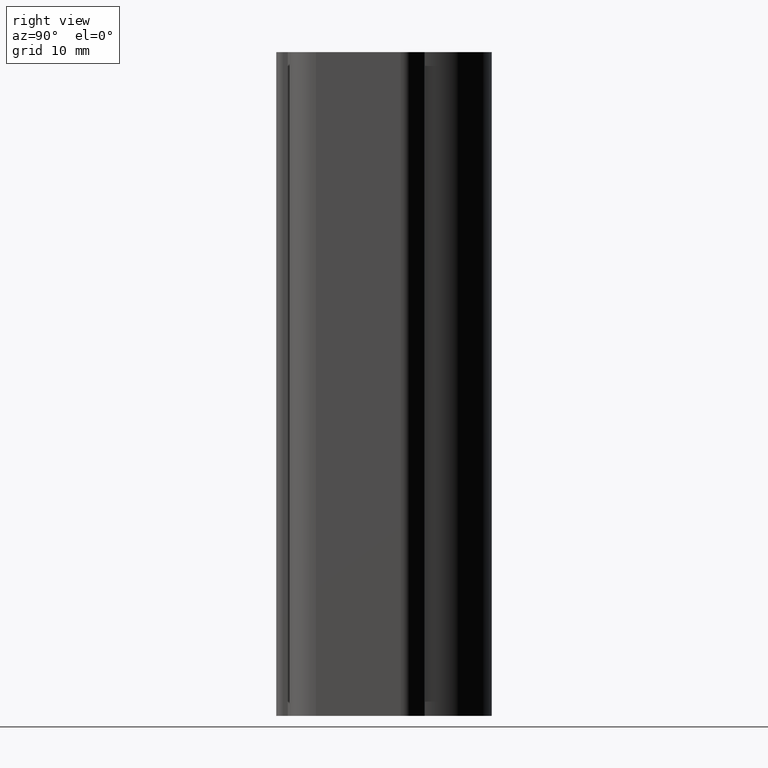
[diagram: clean part render]
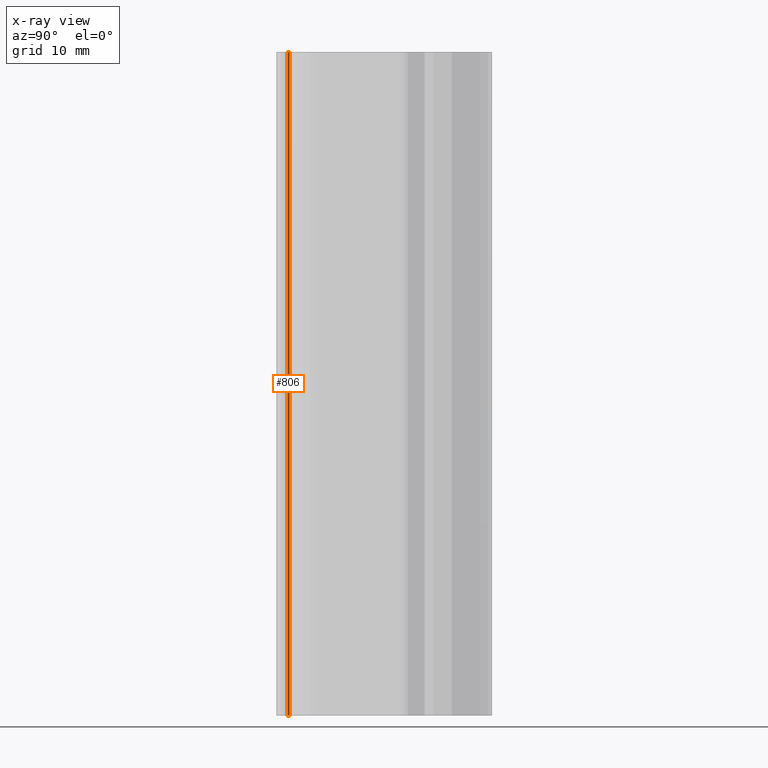
[diagram: x-ray — body ghosted, one internal face saturated and labeled with its STEP entity id]
A machine part, right view, then the same camera in x-ray: the body is ghosted and one INTERNAL B-rep face — a face not visible from any outside direction — is saturated and labeled: STEP entity #806.
In plain terms, the highlighted cylindrical surface (edge-blend (fillet) strip) has radius 0.3 mm, axis along (0, 0, 1).
Its self-contained STEP definition (entity closure, byte-faithful):
#46=CYLINDRICAL_SURFACE('',#956,0.3);
#83=FACE_OUTER_BOUND('',#126,.T.);
#126=EDGE_LOOP('',(#685,#686,#687,#688));
#155=CIRCLE('',#902,0.3);
#177=CIRCLE('',#957,0.3);
#243=LINE('',#1441,#314);
#244=LINE('',#1445,#315);
#314=VECTOR('',#1187,10.);
#315=VECTOR('',#1192,10.);
#357=VERTEX_POINT('',#1301);
#358=VERTEX_POINT('',#1303);
#394=VERTEX_POINT('',#1439);
#395=VERTEX_POINT('',#1443);
#435=EDGE_CURVE('',#357,#358,#155,.T.);
#504=EDGE_CURVE('',#357,#394,#243,.T.);
#505=EDGE_CURVE('',#395,#394,#177,.T.);
#506=EDGE_CURVE('',#358,#395,#244,.T.);
#685=ORIENTED_EDGE('',*,*,#504,.T.);
#686=ORIENTED_EDGE('',*,*,#505,.F.);
#687=ORIENTED_EDGE('',*,*,#506,.F.);
#688=ORIENTED_EDGE('',*,*,#435,.F.);
#806=ADVANCED_FACE('',(#83),#46,.F.);
#902=AXIS2_PLACEMENT_3D('',#1304,#1032,#1033);
#956=AXIS2_PLACEMENT_3D('',#1442,#1188,#1189);
#957=AXIS2_PLACEMENT_3D('',#1444,#1190,#1191);
#1032=DIRECTION('center_axis',(0.,0.,1.));
#1033=DIRECTION('ref_axis',(-1.,0.,0.));
#1187=DIRECTION('',(0.,0.,1.));
#1188=DIRECTION('center_axis',(0.,0.,1.));
#1189=DIRECTION('ref_axis',(-1.,0.,0.));
#1190=DIRECTION('center_axis',(0.,0.,-1.));
#1191=DIRECTION('ref_axis',(-1.,0.,0.));
#1192=DIRECTION('',(0.,0.,1.));
#1301=CARTESIAN_POINT('',(-3.99999999999987,-18.3000000000001,-50.));
#1303=CARTESIAN_POINT('',(-4.29999999999987,-18.0000000000001,-50.));
#1304=CARTESIAN_POINT('Origin',(-4.29999999999987,-18.3000000000001,-50.));
#1439=CARTESIAN_POINT('',(-3.99999999999987,-18.3000000000001,50.));
#1441=CARTESIAN_POINT('',(-3.99999999999987,-18.3000000000001,0.));
#1442=CARTESIAN_POINT('Origin',(-4.29999999999987,-18.3000000000001,0.));
#1443=CARTESIAN_POINT('',(-4.29999999999987,-18.0000000000001,50.));
#1444=CARTESIAN_POINT('Origin',(-4.29999999999987,-18.3000000000001,50.));
#1445=CARTESIAN_POINT('',(-4.29999999999987,-18.0000000000001,0.));